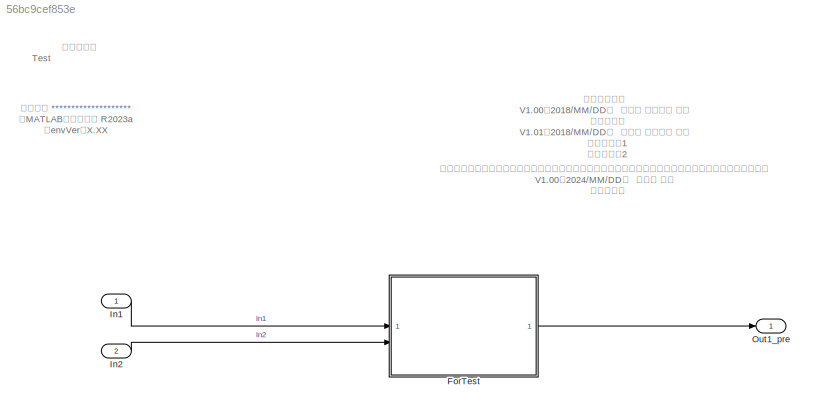
MODEL slx_56bc9cef853e
KIND model
CONFIG AbsTol = auto
CONFIG EnableMultiTasking = off
CONFIG FixedStep = SAMPLETIME
CONFIG MaxStep = auto
CONFIG MinStep = auto
CONFIG RelTol = 1e-3
CONFIG SampleTimeConstraint = Unconstrained
CONFIG SolverName = FixedStepDiscrete
CONFIG StartTime = 0.0
CONFIG StopTime = SIMTIME
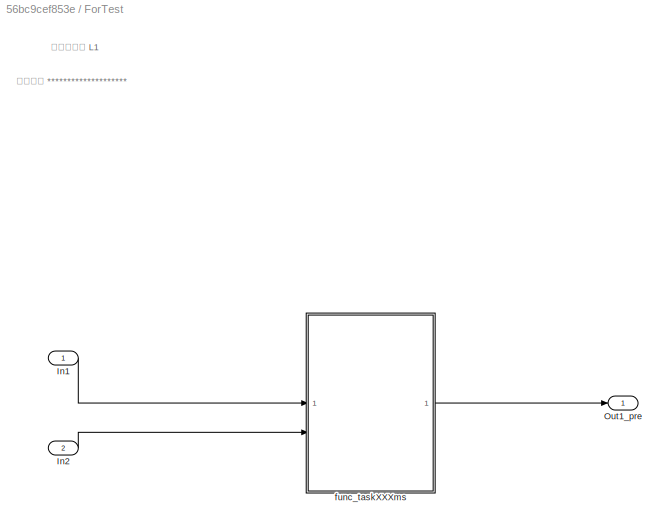
BLOCK [SubSystem] ForTest
  AttributesFormatString = (%<Description>)
  Description = XXX機能
  TreatAsAtomicUnit = on
BLOCK [Inport] ForTest/In1
  AttributesFormatString = (%<Description>)
  Description = 入力変数名
BLOCK [Inport] ForTest/In2
  AttributesFormatString = (%<Description>)
  Description = 入力変数名
  Port = 2
BLOCK [Outport] ForTest/Out1_pre
  AttributesFormatString = (%<Description>)
  Description = 出力変数名
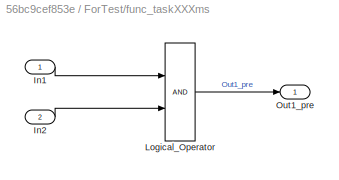
BLOCK [SubSystem] ForTest/func_taskXXXms
  AttributesFormatString = (%<Description>)
  Description = XXX周期タスク
  TreatAsAtomicUnit = on
BLOCK [Inport] ForTest/func_taskXXXms/In1
  AttributesFormatString = (%<Description>)
  Description = 入力変数名
BLOCK [Inport] ForTest/func_taskXXXms/In2
  AttributesFormatString = (%<Description>)
  Description = 入力変数名
  Port = 2
BLOCK [Logic] ForTest/func_taskXXXms/Logical_Operator
  OutDataTypeStr = boolean
BLOCK [Outport] ForTest/func_taskXXXms/Out1_pre
  AttributesFormatString = (%<Description>)
  Description = 出力変数名
BLOCK [Inport] In1
  AttributesFormatString = (%<Description>)
  Description = 入力変数名
BLOCK [Inport] In2
  AttributesFormatString = (%<Description>)
  Description = 入力変数名
  Port = 2
BLOCK [Outport] Out1_pre
  AttributesFormatString = (%<Description>)
  Description = 出力変数名
ANNOTATION (root): 表紙レイヤ
ANNOTATION (root): Test
ANNOTATION (root): 【テンプレート更新履歴】（※本テンプレートを利用する際、本テンプレート更新履歴を削除すること） V1.00（2024/MM/DD） 作成者 氏名 ・新規作成
ANNOTATION (root): 【更新履歴】 V1.00（2018/MM/DD） 作成者 社員番号 氏名 ・新規作成 V1.01（2018/MM/DD） 作成者 社員番号 氏名 ・改訂内容1 ・改訂内容2
ANNOTATION (root): 【概要】 ******************** 【MATLABリリース】 R2023a 【envVer】X.XX
ANNOTATION ForTest: 構造レイヤ L1
ANNOTATION ForTest: 【概要】 ********************
LINE ForTest/In1:1 -> ForTest/func_taskXXXms:1
LINE ForTest/In2:1 -> ForTest/func_taskXXXms:2
LINE ForTest/func_taskXXXms/In1:1 -> ForTest/func_taskXXXms/Logical_Operator:1
LINE ForTest/func_taskXXXms/In2:1 -> ForTest/func_taskXXXms/Logical_Operator:2
LINE ForTest/func_taskXXXms/Logical_Operator:1 -> ForTest/func_taskXXXms/Out1_pre:1
LINE ForTest/func_taskXXXms:1 -> ForTest/Out1_pre:1
LINE ForTest:1 -> Out1_pre:1
LINE In1:1 -> ForTest:1
LINE In2:1 -> ForTest:2
